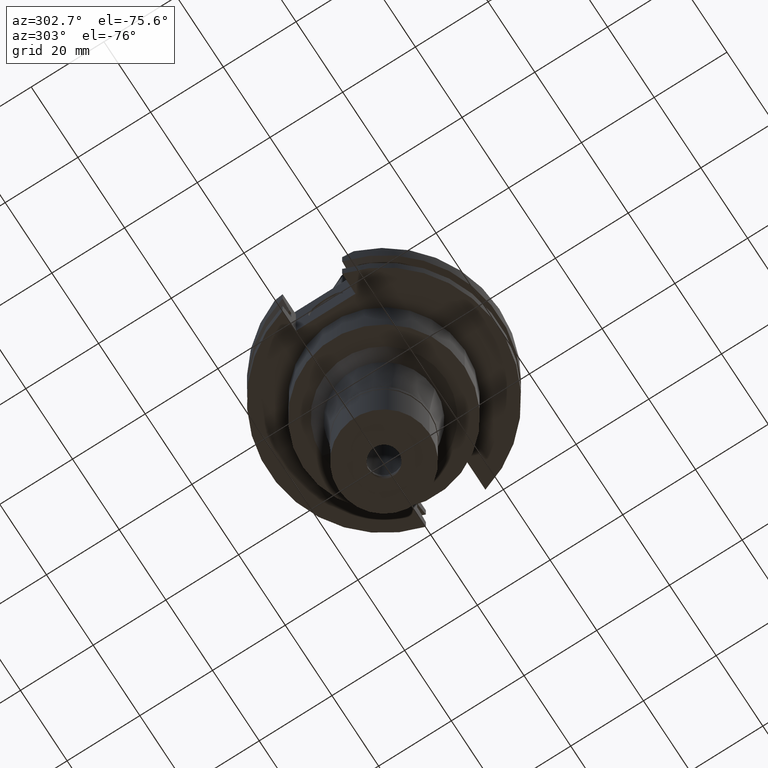
[diagram: clean part render]
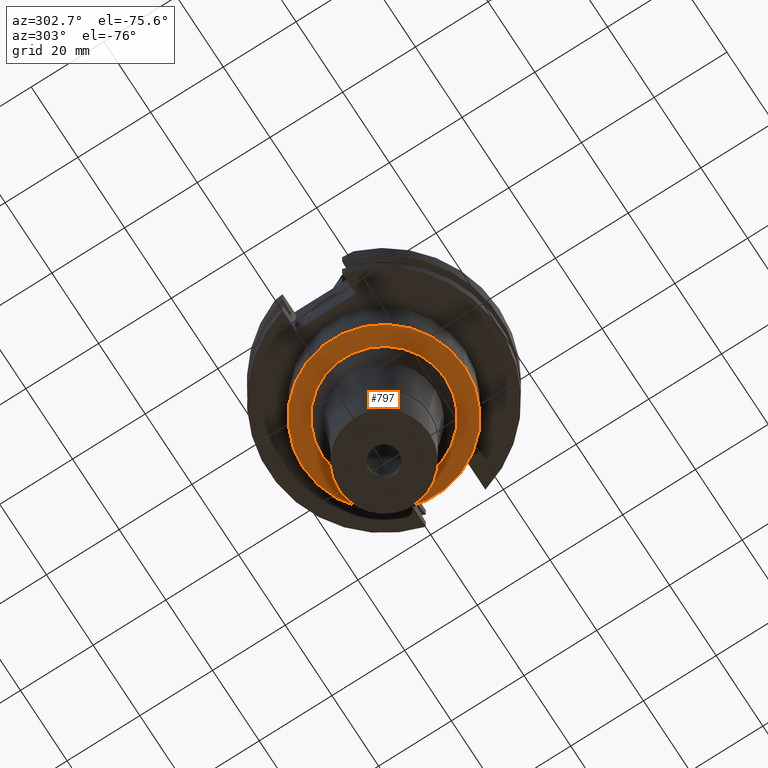
[diagram: same view with one face highlighted and labeled with its STEP entity id]
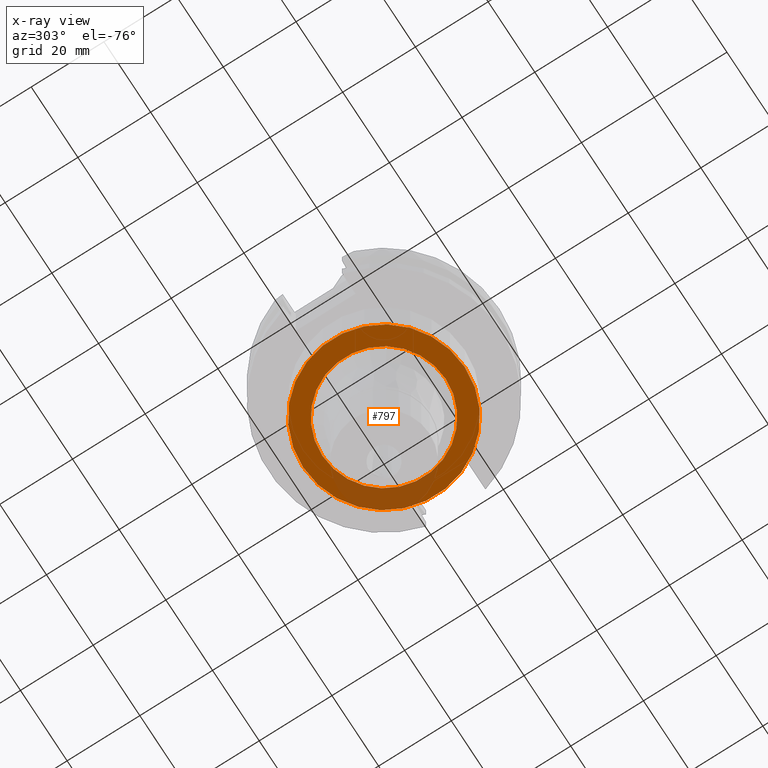
[diagram: x-ray of the same camera — body ghosted, the highlighted face saturated]
A machine part, auxiliary view. The second image highlights one B-rep face of the part: STEP entity #797.
The next image is the same camera in x-ray: the body ghosted, the highlighted face saturated — about 19% of this face is hidden behind the body in this view.
In plain terms, the highlighted planar face has unit normal (0, 0, -1).
Its self-contained STEP definition (entity closure, byte-faithful):
#70 = CARTESIAN_POINT ( 'NONE',  ( 0.0000000000000000000, -16.97855841359000095, -35.00000000000000000 ) ) ;
#74 = CARTESIAN_POINT ( 'NONE',  ( 0.0000000000000000000, 0.0000000000000000000, -35.00000000000000000 ) ) ;
#253 = VERTEX_POINT ( 'NONE', #2654 ) ;
#293 = CIRCLE ( 'NONE', #3066, 16.97855841359000095 ) ;
#335 = DIRECTION ( 'NONE',  ( 0.0000000000000000000, 0.0000000000000000000, -1.000000000000000000 ) ) ;
#367 = FACE_BOUND ( 'NONE', #1033, .T. ) ;
#655 = DIRECTION ( 'NONE',  ( 0.0000000000000000000, 0.0000000000000000000, 1.000000000000000000 ) ) ;
#656 = CARTESIAN_POINT ( 'NONE',  ( 0.0000000000000000000, 2.145121949555999817E-14, -35.00000000000000000 ) ) ;
#797 = ADVANCED_FACE ( 'NONE', ( #2667, #367 ), #1384, .T. ) ;
#837 = ORIENTED_EDGE ( 'NONE', *, *, #3021, .F. ) ;
#904 = EDGE_CURVE ( 'NONE', #253, #2573, #1345, .T. ) ;
#953 = CIRCLE ( 'NONE', #2855, 22.22500000000000142 ) ;
#1023 = AXIS2_PLACEMENT_3D ( 'NONE', #1879, #3188, #2135 ) ;
#1033 = EDGE_LOOP ( 'NONE', ( #2774, #2723 ) ) ;
#1208 = CARTESIAN_POINT ( 'NONE',  ( 0.0000000000000000000, 2.145121949555999817E-14, -35.00000000000000000 ) ) ;
#1253 = CARTESIAN_POINT ( 'NONE',  ( 0.0000000000000000000, -22.22500000000000142, -35.00000000000000000 ) ) ;
#1345 = CIRCLE ( 'NONE', #2431, 22.22500000000000142 ) ;
#1384 = PLANE ( 'NONE',  #2008 ) ;
#1420 = DIRECTION ( 'NONE',  ( 0.0000000000000000000, -1.000000000000000000, 0.0000000000000000000 ) ) ;
#1536 = VERTEX_POINT ( 'NONE', #2274 ) ;
#1731 = EDGE_CURVE ( 'NONE', #3312, #1536, #3302, .T. ) ;
#1879 = CARTESIAN_POINT ( 'NONE',  ( 0.0000000000000000000, 0.0000000000000000000, -35.00000000000000000 ) ) ;
#1923 = DIRECTION ( 'NONE',  ( 0.0000000000000000000, -1.000000000000000000, 0.0000000000000000000 ) ) ;
#2008 = AXIS2_PLACEMENT_3D ( 'NONE', #74, #3215, #1923 ) ;
#2135 = DIRECTION ( 'NONE',  ( 0.0000000000000000000, -1.000000000000000000, 0.0000000000000000000 ) ) ;
#2147 = EDGE_LOOP ( 'NONE', ( #2389, #837 ) ) ;
#2182 = CARTESIAN_POINT ( 'NONE',  ( 0.0000000000000000000, 0.0000000000000000000, -35.00000000000000000 ) ) ;
#2196 = DIRECTION ( 'NONE',  ( 0.0000000000000000000, 1.000000000000000000, 0.0000000000000000000 ) ) ;
#2229 = DIRECTION ( 'NONE',  ( 0.0000000000000000000, 0.0000000000000000000, 1.000000000000000000 ) ) ;
#2274 = CARTESIAN_POINT ( 'NONE',  ( 0.0000000000000000000, 16.97855841359000095, -35.00000000000000000 ) ) ;
#2389 = ORIENTED_EDGE ( 'NONE', *, *, #904, .F. ) ;
#2431 = AXIS2_PLACEMENT_3D ( 'NONE', #1208, #655, #2793 ) ;
#2518 = EDGE_CURVE ( 'NONE', #1536, #3312, #293, .T. ) ;
#2573 = VERTEX_POINT ( 'NONE', #1253 ) ;
#2654 = CARTESIAN_POINT ( 'NONE',  ( 0.0000000000000000000, 22.22500000000000142, -35.00000000000000000 ) ) ;
#2667 = FACE_OUTER_BOUND ( 'NONE', #2147, .T. ) ;
#2723 = ORIENTED_EDGE ( 'NONE', *, *, #1731, .F. ) ;
#2774 = ORIENTED_EDGE ( 'NONE', *, *, #2518, .F. ) ;
#2793 = DIRECTION ( 'NONE',  ( 0.0000000000000000000, 1.000000000000000000, 0.0000000000000000000 ) ) ;
#2855 = AXIS2_PLACEMENT_3D ( 'NONE', #656, #2229, #1420 ) ;
#3021 = EDGE_CURVE ( 'NONE', #2573, #253, #953, .T. ) ;
#3066 = AXIS2_PLACEMENT_3D ( 'NONE', #2182, #335, #2196 ) ;
#3188 = DIRECTION ( 'NONE',  ( 0.0000000000000000000, 0.0000000000000000000, -1.000000000000000000 ) ) ;
#3215 = DIRECTION ( 'NONE',  ( 0.0000000000000000000, 0.0000000000000000000, -1.000000000000000000 ) ) ;
#3302 = CIRCLE ( 'NONE', #1023, 16.97855841359000095 ) ;
#3312 = VERTEX_POINT ( 'NONE', #70 ) ;